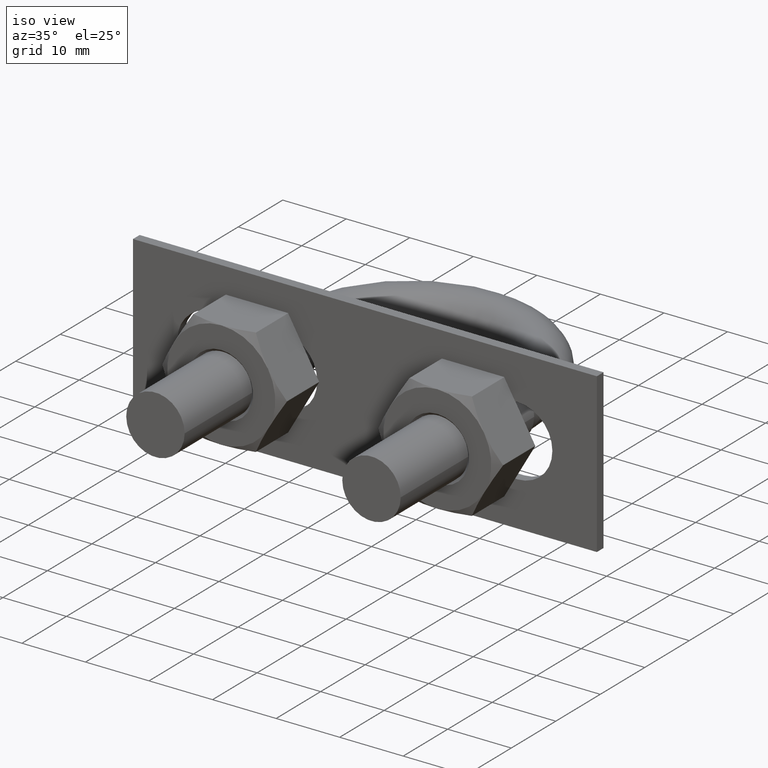
[diagram: clean part render]
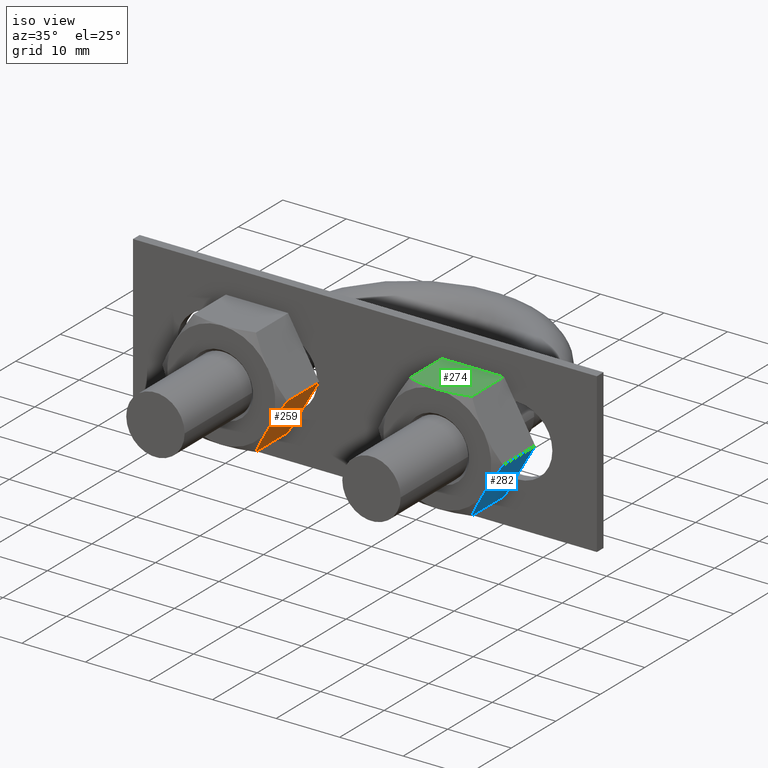
[diagram: same view with three faces highlighted in distinct colors, each labeled with its STEP entity id]
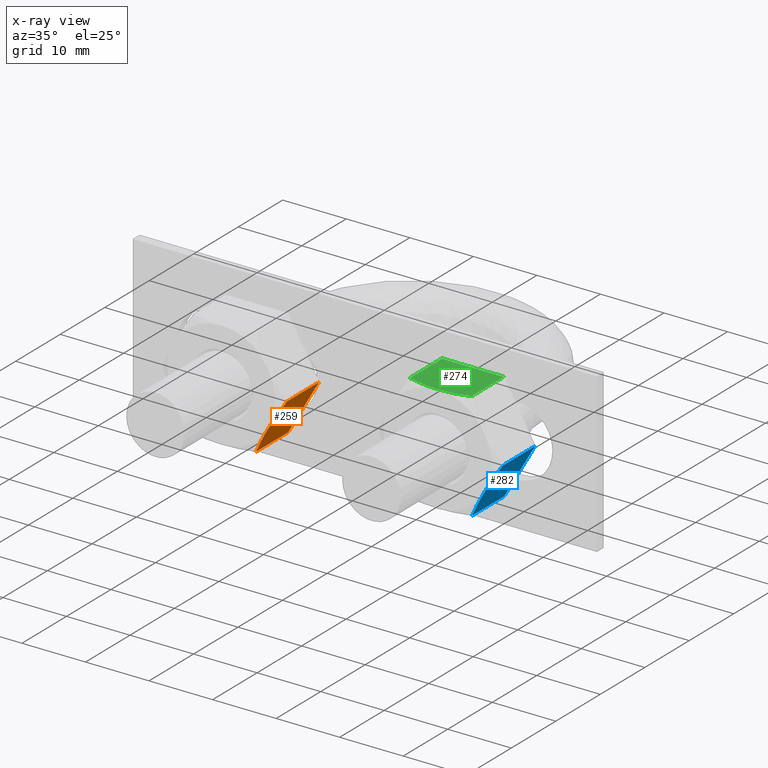
[diagram: x-ray of the same camera — body ghosted, the three highlighted faces saturated]
A machine part, iso view with three faces highlighted in distinct colors.
The next image is the same camera in x-ray (body ghosted, the three faces saturated) — at least one of them is partly hidden behind the body in this view.
Their STEP definitions:

[orange] entity #259 — the highlighted planar face has unit normal (-0.866, 0, 0.5).
#259 = ADVANCED_FACE( '', ( #382 ), #383, .F. );
#382 = FACE_OUTER_BOUND( '', #702, .T. );
#383 = PLANE( '', #703 );
#702 = EDGE_LOOP( '', ( #1074, #1075, #1076, #1077, #1078 ) );
#703 = AXIS2_PLACEMENT_3D( '', #1079, #1080, #1081 );
#1074 = ORIENTED_EDGE( '', *, *, #1366, .F. );
#1075 = ORIENTED_EDGE( '', *, *, #1399, .F. );
#1076 = ORIENTED_EDGE( '', *, *, #1400, .F. );
#1077 = ORIENTED_EDGE( '', *, *, #1373, .F. );
#1078 = ORIENTED_EDGE( '', *, *, #1393, .F. );
#1079 = CARTESIAN_POINT( '', ( -7.18504542377816, -7.20000000000000, 3.67977546610709E-032 ) );
#1080 = DIRECTION( '', ( -0.866025403784399, 5.30270106022983E-017, 0.500000000000069 ) );
#1081 = DIRECTION( '', ( 0.500000000000069, -3.06151588455636E-017, 0.866025403784399 ) );
#1366 = EDGE_CURVE( '', #1561, #1574, #1575, .T. );
#1373 = EDGE_CURVE( '', #1585, #1587, #1588, .T. );
#1393 = EDGE_CURVE( '', #1574, #1585, #1618, .T. );
#1399 = EDGE_CURVE( '', #1626, #1561, #1627, .T. );
#1400 = EDGE_CURVE( '', #1587, #1626, #1628, .F. );
#1561 = VERTEX_POINT( '', #1887 );
#1574 = VERTEX_POINT( '', #1908 );
#1575 = B_SPLINE_CURVE_WITH_KNOTS( '', 3, ( #1909, #1910, #1911, #1912, #1913, #1914, #1915, #1916 ), .UNSPECIFIED., .F., .F., ( 4, 2, 2, 4 ), ( 0.00493529902949312, 0.00616408349151704, 0.00739286795354095, 0.00985043687758878 ), .UNSPECIFIED. );
#1585 = VERTEX_POINT( '', #1927 );
#1587 = VERTEX_POINT( '', #1929 );
#1588 = LINE( '', #1930, #1931 );
#1618 = LINE( '', #1999, #2000 );
#1626 = VERTEX_POINT( '', #2020 );
#1627 = B_SPLINE_CURVE_WITH_KNOTS( '', 3, ( #2021, #2022, #2023, #2024, #2025, #2026 ), .UNSPECIFIED., .F., .F., ( 4, 2, 4 ), ( 7.17194508351915E-007, 0.00246800811200074, 0.00493529902949312 ), .UNSPECIFIED. );
#1628 = LINE( '', #2027, #2028 );
#1887 = CARTESIAN_POINT( '', ( -9.63878406783362, -15.1999999999985, -4.25000000000000 ) );
#1908 = CARTESIAN_POINT( '', ( -7.20003438818262, -14.4494446500522, -0.0259616479013788 ) );
#1909 = CARTESIAN_POINT( '', ( -9.63878406783433, -15.1999999999991, -4.24999999999968 ) );
#1910 = CARTESIAN_POINT( '', ( -9.43192925395885, -15.1999999999991, -3.89171695257720 ) );
#1911 = CARTESIAN_POINT( '', ( -9.22404065703297, -15.1822887858771, -3.53164334038744 ) );
#1912 = CARTESIAN_POINT( '', ( -8.81278456700540, -15.1136979023192, -2.81932689753770 ) );
#1913 = CARTESIAN_POINT( '', ( -8.60852350883576, -15.0628885136651, -2.46553636678016 ) );
#1914 = CARTESIAN_POINT( '', ( -7.99935022544374, -14.8668508935335, -1.41041728933183 ) );
#1915 = CARTESIAN_POINT( '', ( -7.59803450223044, -14.6781749556140, -0.715318066850275 ) );
#1916 = CARTESIAN_POINT( '', ( -7.20003438818261, -14.4494446500524, -0.0259616479013401 ) );
#1927 = CARTESIAN_POINT( '', ( -7.20003438818262, -7.20000000000000, -0.0259616479013813 ) );
#1929 = CARTESIAN_POINT( '', ( -12.0775337474846, -7.20000000000000, -8.47403835209862 ) );
#1930 = CARTESIAN_POINT( '', ( -12.0887840678332, -7.20000000000000, -8.49352447854375 ) );
#1931 = VECTOR( '', #2341, 1000.00000000008 );
#1999 = CARTESIAN_POINT( '', ( -7.20003438818262, -7.20000000000000, -0.0259616479013807 ) );
#2000 = VECTOR( '', #2366, 999.999999999939 );
#2020 = CARTESIAN_POINT( '', ( -12.0775337474846, -14.4494446500522, -8.47403835209862 ) );
#2021 = CARTESIAN_POINT( '', ( -12.0775337474860, -14.4494446500524, -8.47403835209787 ) );
#2022 = CARTESIAN_POINT( '', ( -11.6784819807139, -14.6787793394834, -7.78286041719862 ) );
#2023 = CARTESIAN_POINT( '', ( -11.2765478875211, -14.8675470520185, -7.08669014649468 ) );
#2024 = CARTESIAN_POINT( '', ( -10.4644024261525, -15.1285849074231, -5.68001294426800 ) );
#2025 = CARTESIAN_POINT( '', ( -10.0541303057530, -15.1999999999991, -4.96940078680728 ) );
#2026 = CARTESIAN_POINT( '', ( -9.63878406783433, -15.1999999999991, -4.24999999999967 ) );
#2027 = CARTESIAN_POINT( '', ( -12.0775337474846, -7.20000000000000, -8.47403835209862 ) );
#2028 = VECTOR( '', #2372, 999.999999999939 );
#2341 = DIRECTION( '', ( -0.499999999999931, 3.06151588455552E-017, -0.866025403784478 ) );
#2366 = DIRECTION( '', ( 6.12303176911189E-017, 1.00000000000000, 0.000000000000000 ) );
#2372 = DIRECTION( '', ( 6.12303176911189E-017, 1.00000000000000, 0.000000000000000 ) );

[blue] entity #282 — the highlighted planar face has unit normal (-0.866, 0, 0.5).
#282 = ADVANCED_FACE( '', ( #433 ), #434, .F. );
#433 = FACE_OUTER_BOUND( '', #753, .T. );
#434 = PLANE( '', #754 );
#753 = EDGE_LOOP( '', ( #1247, #1248, #1249, #1250, #1251 ) );
#754 = AXIS2_PLACEMENT_3D( '', #1252, #1253, #1254 );
#1247 = ORIENTED_EDGE( '', *, *, #1418, .F. );
#1248 = ORIENTED_EDGE( '', *, *, #1451, .F. );
#1249 = ORIENTED_EDGE( '', *, *, #1452, .F. );
#1250 = ORIENTED_EDGE( '', *, *, #1425, .F. );
#1251 = ORIENTED_EDGE( '', *, *, #1445, .F. );
#1252 = CARTESIAN_POINT( '', ( 26.8149545762218, -7.20000000000000, 3.67977546610709E-032 ) );
#1253 = DIRECTION( '', ( -0.866025403784399, 5.30270106022983E-017, 0.500000000000069 ) );
#1254 = DIRECTION( '', ( 0.500000000000069, -3.06151588455636E-017, 0.866025403784399 ) );
#1418 = EDGE_CURVE( '', #1647, #1660, #1661, .T. );
#1425 = EDGE_CURVE( '', #1671, #1673, #1674, .T. );
#1445 = EDGE_CURVE( '', #1660, #1671, #1704, .T. );
#1451 = EDGE_CURVE( '', #1712, #1647, #1713, .T. );
#1452 = EDGE_CURVE( '', #1673, #1712, #1714, .F. );
#1647 = VERTEX_POINT( '', #2059 );
#1660 = VERTEX_POINT( '', #2080 );
#1661 = B_SPLINE_CURVE_WITH_KNOTS( '', 3, ( #2081, #2082, #2083, #2084, #2085, #2086, #2087, #2088 ), .UNSPECIFIED., .F., .F., ( 4, 2, 2, 4 ), ( 0.00493529902949312, 0.00616408349151704, 0.00739286795354095, 0.00985043687758878 ), .UNSPECIFIED. );
#1671 = VERTEX_POINT( '', #2099 );
#1673 = VERTEX_POINT( '', #2101 );
#1674 = LINE( '', #2102, #2103 );
#1704 = LINE( '', #2171, #2172 );
#1712 = VERTEX_POINT( '', #2192 );
#1713 = B_SPLINE_CURVE_WITH_KNOTS( '', 3, ( #2193, #2194, #2195, #2196, #2197, #2198 ), .UNSPECIFIED., .F., .F., ( 4, 2, 4 ), ( 7.17194508351915E-007, 0.00246800811200074, 0.00493529902949312 ), .UNSPECIFIED. );
#1714 = LINE( '', #2199, #2200 );
#2059 = CARTESIAN_POINT( '', ( 24.3612159321664, -15.1999999999985, -4.25000000000000 ) );
#2080 = CARTESIAN_POINT( '', ( 26.7999656118174, -14.4494446500522, -0.0259616479013788 ) );
#2081 = CARTESIAN_POINT( '', ( 24.3612159321657, -15.1999999999991, -4.24999999999968 ) );
#2082 = CARTESIAN_POINT( '', ( 24.5680707460412, -15.1999999999991, -3.89171695257720 ) );
#2083 = CARTESIAN_POINT( '', ( 24.7759593429670, -15.1822887858771, -3.53164334038744 ) );
#2084 = CARTESIAN_POINT( '', ( 25.1872154329946, -15.1136979023192, -2.81932689753770 ) );
#2085 = CARTESIAN_POINT( '', ( 25.3914764911642, -15.0628885136651, -2.46553636678016 ) );
#2086 = CARTESIAN_POINT( '', ( 26.0006497745563, -14.8668508935335, -1.41041728933183 ) );
#2087 = CARTESIAN_POINT( '', ( 26.4019654977695, -14.6781749556140, -0.715318066850274 ) );
#2088 = CARTESIAN_POINT( '', ( 26.7999656118174, -14.4494446500524, -0.0259616479013395 ) );
#2099 = CARTESIAN_POINT( '', ( 26.7999656118174, -7.20000000000000, -0.0259616479013813 ) );
#2101 = CARTESIAN_POINT( '', ( 21.9224662525154, -7.20000000000000, -8.47403835209862 ) );
#2102 = CARTESIAN_POINT( '', ( 21.9112159321668, -7.20000000000000, -8.49352447854375 ) );
#2103 = VECTOR( '', #2425, 1000.00000000008 );
#2171 = CARTESIAN_POINT( '', ( 26.7999656118174, -7.20000000000000, -0.0259616479013807 ) );
#2172 = VECTOR( '', #2450, 999.999999999939 );
#2192 = CARTESIAN_POINT( '', ( 21.9224662525154, -14.4494446500522, -8.47403835209862 ) );
#2193 = CARTESIAN_POINT( '', ( 21.9224662525140, -14.4494446500524, -8.47403835209787 ) );
#2194 = CARTESIAN_POINT( '', ( 22.3215180192861, -14.6787793394834, -7.78286041719862 ) );
#2195 = CARTESIAN_POINT( '', ( 22.7234521124789, -14.8675470520185, -7.08669014649468 ) );
#2196 = CARTESIAN_POINT( '', ( 23.5355975738476, -15.1285849074231, -5.68001294426801 ) );
#2197 = CARTESIAN_POINT( '', ( 23.9458696942470, -15.1999999999991, -4.96940078680728 ) );
#2198 = CARTESIAN_POINT( '', ( 24.3612159321657, -15.1999999999991, -4.24999999999968 ) );
#2199 = CARTESIAN_POINT( '', ( 21.9224662525154, -7.20000000000000, -8.47403835209862 ) );
#2200 = VECTOR( '', #2456, 999.999999999939 );
#2425 = DIRECTION( '', ( -0.499999999999931, 3.06151588455552E-017, -0.866025403784478 ) );
#2450 = DIRECTION( '', ( 6.12303176911189E-017, 1.00000000000000, 0.000000000000000 ) );
#2456 = DIRECTION( '', ( 6.12303176911189E-017, 1.00000000000000, 0.000000000000000 ) );

[green] entity #274 — the highlighted planar face has unit normal (0, -0, -1).
#274 = ADVANCED_FACE( '', ( #417 ), #418, .F. );
#417 = FACE_OUTER_BOUND( '', #737, .T. );
#418 = PLANE( '', #738 );
#737 = EDGE_LOOP( '', ( #1187, #1188, #1189, #1190, #1191 ) );
#738 = AXIS2_PLACEMENT_3D( '', #1192, #1193, #1194 );
#1187 = ORIENTED_EDGE( '', *, *, #1438, .F. );
#1188 = ORIENTED_EDGE( '', *, *, #1405, .F. );
#1189 = ORIENTED_EDGE( '', *, *, #1439, .F. );
#1190 = ORIENTED_EDGE( '', *, *, #1422, .F. );
#1191 = ORIENTED_EDGE( '', *, *, #1433, .F. );
#1192 = CARTESIAN_POINT( '', ( 12.0925227118891, -7.20000000000000, 8.50000000000000 ) );
#1193 = DIRECTION( '', ( 3.74915180455534E-033, -2.29561756065155E-049, -1.00000000000000 ) );
#1194 = DIRECTION( '', ( -6.12303176911189E-017, -1.00000000000000, 0.000000000000000 ) );
#1405 = EDGE_CURVE( '', #1634, #1637, #1638, .T. );
#1422 = EDGE_CURVE( '', #1666, #1668, #1669, .T. );
#1433 = EDGE_CURVE( '', #1687, #1666, #1689, .T. );
#1438 = EDGE_CURVE( '', #1637, #1687, #1696, .T. );
#1439 = EDGE_CURVE( '', #1668, #1634, #1697, .F. );
#1634 = VERTEX_POINT( '', #2034 );
#1637 = VERTEX_POINT( '', #2037 );
#1638 = B_SPLINE_CURVE_WITH_KNOTS( '', 3, ( #2038, #2039, #2040, #2041, #2042, #2043 ), .UNSPECIFIED., .F., .F., ( 4, 2, 4 ), ( 0.0107224888714697, 0.0132032657403427, 0.0156840426092158 ), .UNSPECIFIED. );
#1666 = VERTEX_POINT( '', #2093 );
#1668 = VERTEX_POINT( '', #2095 );
#1669 = LINE( '', #2096, #2097 );
#1687 = VERTEX_POINT( '', #2119 );
#1689 = LINE( '', #2121, #2122 );
#1696 = B_SPLINE_CURVE_WITH_KNOTS( '', 3, ( #2142, #2143, #2144, #2145, #2146, #2147 ), .UNSPECIFIED., .F., .F., ( 4, 2, 4 ), ( 0.0156840426092158, 0.0181633795370681, 0.0206427164649205 ), .UNSPECIFIED. );
#1697 = LINE( '', #2148, #2149 );
#2034 = CARTESIAN_POINT( '', ( 21.8774993593020, -14.4494446500522, 8.50000000000000 ) );
#2037 = CARTESIAN_POINT( '', ( 17.0000000000000, -15.1999999999985, 8.50000000000000 ) );
#2038 = CARTESIAN_POINT( '', ( 21.8774993593019, -14.4494446500517, 8.50000000000000 ) );
#2039 = CARTESIAN_POINT( '', ( 21.0828739329402, -14.6777799069567, 8.50000000000000 ) );
#2040 = CARTESIAN_POINT( '', ( 20.2812026223233, -14.8663452882808, 8.50000000000000 ) );
#2041 = CARTESIAN_POINT( '', ( 18.6573811694457, -15.1278850822163, 8.50000000000000 ) );
#2042 = CARTESIAN_POINT( '', ( 17.8350787536113, -15.1999999999979, 8.50000000000000 ) );
#2043 = CARTESIAN_POINT( '', ( 16.9999999999999, -15.1999999999979, 8.50000000000000 ) );
#2093 = CARTESIAN_POINT( '', ( 12.1225006406980, -7.20000000000000, 8.50000000000000 ) );
#2095 = CARTESIAN_POINT( '', ( 21.8774993593020, -7.20000000000000, 8.50000000000000 ) );
#2096 = CARTESIAN_POINT( '', ( 7.20000000000179, -7.20000000000000, 8.50000000000000 ) );
#2097 = VECTOR( '', #2418, 999.999999999939 );
#2119 = CARTESIAN_POINT( '', ( 12.1225006406980, -14.4494446500522, 8.50000000000000 ) );
#2121 = CARTESIAN_POINT( '', ( 12.1225006406980, -7.20000000000000, 8.50000000000000 ) );
#2122 = VECTOR( '', #2441, 999.999999999939 );
#2142 = CARTESIAN_POINT( '', ( 16.9999999999999, -15.1999999999979, 8.50000000000000 ) );
#2143 = CARTESIAN_POINT( '', ( 16.1654059591282, -15.1999999999979, 8.50000000000000 ) );
#2144 = CARTESIAN_POINT( '', ( 15.3409017267989, -15.1276895388717, 8.50000000000000 ) );
#2145 = CARTESIAN_POINT( '', ( 13.7171925770411, -14.8660056252248, 8.50000000000000 ) );
#2146 = CARTESIAN_POINT( '', ( 12.9161421877736, -14.6774971896888, 8.50000000000000 ) );
#2147 = CARTESIAN_POINT( '', ( 12.1225006406981, -14.4494446500517, 8.50000000000000 ) );
#2148 = CARTESIAN_POINT( '', ( 21.8774993593020, -7.20000000000000, 8.50000000000000 ) );
#2149 = VECTOR( '', #2446, 999.999999999939 );
#2418 = DIRECTION( '', ( 1.00000000000000, -6.12303176911189E-017, 3.74915180455534E-033 ) );
#2441 = DIRECTION( '', ( 6.12303176911189E-017, 1.00000000000000, 0.000000000000000 ) );
#2446 = DIRECTION( '', ( 6.12303176911189E-017, 1.00000000000000, 0.000000000000000 ) );